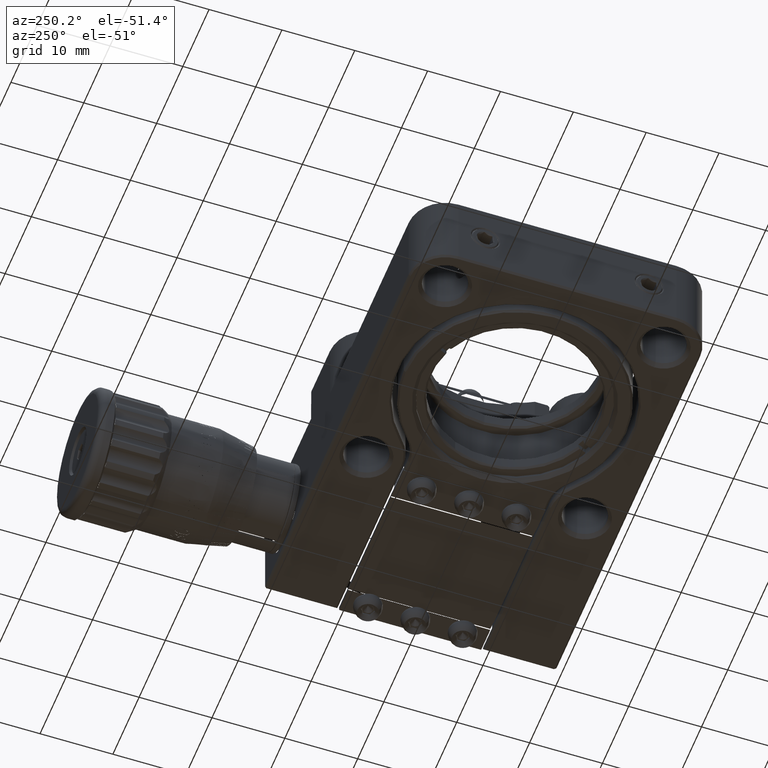
[diagram: clean part render]
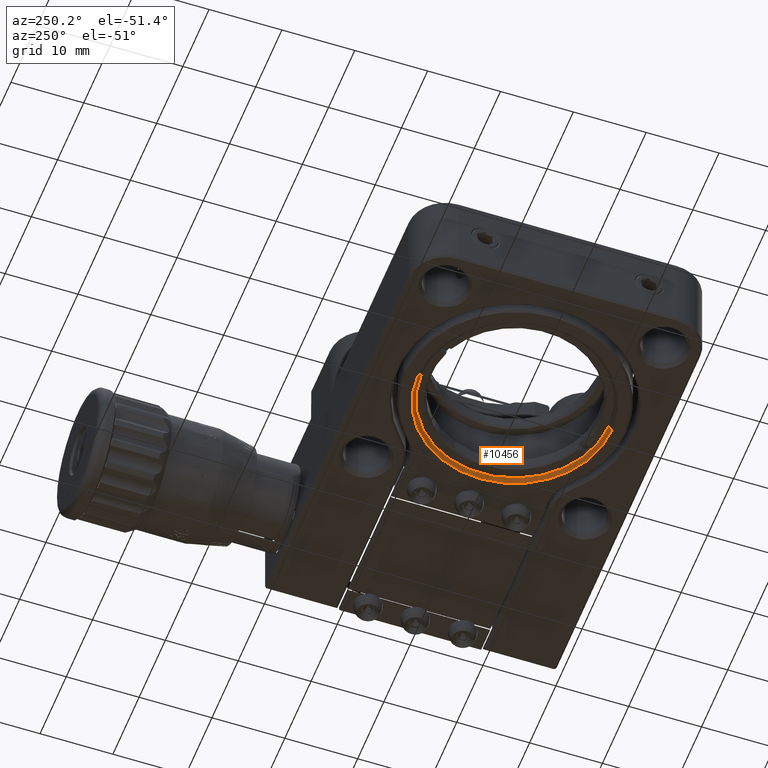
[diagram: same view with one face highlighted and labeled with its STEP entity id]
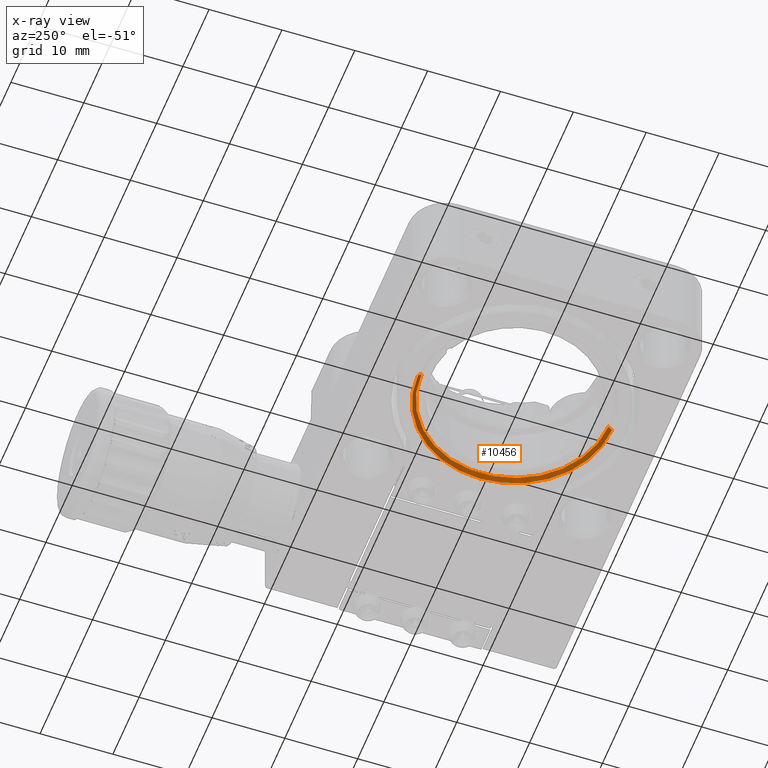
[diagram: x-ray of the same camera — body ghosted, the highlighted face saturated]
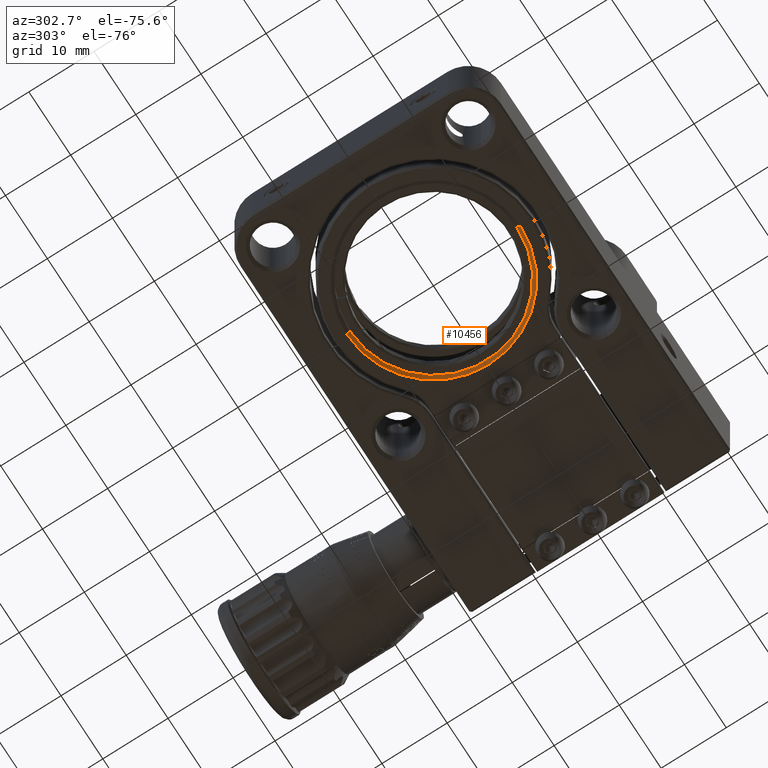
[diagram: same view with one face highlighted and labeled with its STEP entity id]
A machine part, auxiliary view. The second image highlights one B-rep face of the part: STEP entity #10456.
The next image is the same camera in x-ray: the body ghosted, the highlighted face saturated — about 0% of this face is hidden behind the body in this view.
A second angle (auxiliary view) of the same face is appended — the face is thin or edge-on in the first view.
In plain terms, the highlighted conical surface has half-angle 45 deg.
Its self-contained STEP definition (entity closure, byte-faithful):
#583 = DIRECTION ( 'NONE',  ( -1.110223024625156294E-16, -1.000000000000000000, 0.000000000000000000 ) ) ;
#664 = DIRECTION ( 'NONE',  ( 1.110223024625156417E-16, 1.000000000000000000, 0.000000000000000000 ) ) ;
#3903 = EDGE_CURVE ( 'NONE', #22060, #37432, #46453, .T. ) ;
#4125 = AXIS2_PLACEMENT_3D ( 'NONE', #28771, #36958, #583 ) ;
#4570 = DIRECTION ( 'NONE',  ( 1.110223024625156294E-16, 1.000000000000000000, 0.000000000000000000 ) ) ;
#4648 = ORIENTED_EDGE ( 'NONE', *, *, #30741, .F. ) ;
#4872 = DIRECTION ( 'NONE',  ( -7.850462293418833925E-17, -0.7071067811865439090, -0.7071067811865512365 ) ) ;
#5558 = VECTOR ( 'NONE', #4872, 1000.000000000000000 ) ;
#7289 = CARTESIAN_POINT ( 'NONE',  ( 1.311180368549699017E-15, 13.32700000000000529, -5.748279317708217206 ) ) ;
#7662 = CARTESIAN_POINT ( 'NONE',  ( 1.463672932855430986E-15, 5.017193349869462425E-16, -5.248279317708206548 ) ) ;
#8055 = FACE_OUTER_BOUND ( 'NONE', #38486, .T. ) ;
#9631 = VERTEX_POINT ( 'NONE', #43783 ) ;
#10456 = ADVANCED_FACE ( 'NONE', ( #8055 ), #11429, .F. ) ;
#11429 = CONICAL_SURFACE ( 'NONE', #4125, 13.32700000000000529, 0.7853981633974431720 ) ;
#13172 = AXIS2_PLACEMENT_3D ( 'NONE', #26517, #30683, #4570 ) ;
#18416 = CIRCLE ( 'NONE', #13172, 13.32700000000000529 ) ;
#18439 = DIRECTION ( 'NONE',  ( -8.090982689360553298E-18, 0.7071067811865439090, -0.7071067811865512365 ) ) ;
#22060 = VERTEX_POINT ( 'NONE', #30037 ) ;
#22547 = DIRECTION ( 'NONE',  ( -0.000000000000000000, -0.000000000000000000, -1.000000000000000000 ) ) ;
#23149 = CARTESIAN_POINT ( 'NONE',  ( -1.592129206251536189E-17, -13.32700000000000529, -5.748279317708217206 ) ) ;
#26517 = CARTESIAN_POINT ( 'NONE',  ( 1.463672932855430986E-15, 5.017193349869462425E-16, -5.748279317708217206 ) ) ;
#28771 = CARTESIAN_POINT ( 'NONE',  ( 1.463672932855430986E-15, 5.017193349869462425E-16, -5.748279317708217206 ) ) ;
#29325 = VECTOR ( 'NONE', #18439, 1000.000000000000000 ) ;
#30037 = CARTESIAN_POINT ( 'NONE',  ( 1.314040962912754088E-15, 12.82699999999999996, -5.248279317708206548 ) ) ;
#30683 = DIRECTION ( 'NONE',  ( 0.000000000000000000, 0.000000000000000000, 1.000000000000000000 ) ) ;
#30741 = EDGE_CURVE ( 'NONE', #9631, #32512, #18416, .T. ) ;
#32512 = VERTEX_POINT ( 'NONE', #42533 ) ;
#32519 = AXIS2_PLACEMENT_3D ( 'NONE', #7662, #22547, #664 ) ;
#33484 = ORIENTED_EDGE ( 'NONE', *, *, #44887, .F. ) ;
#34428 = EDGE_CURVE ( 'NONE', #22060, #32512, #41333, .T. ) ;
#36958 = DIRECTION ( 'NONE',  ( 0.000000000000000000, 0.000000000000000000, -1.000000000000000000 ) ) ;
#37432 = VERTEX_POINT ( 'NONE', #37883 ) ;
#37790 = ORIENTED_EDGE ( 'NONE', *, *, #34428, .T. ) ;
#37883 = CARTESIAN_POINT ( 'NONE',  ( 1.183428355311396146E-17, -12.82699999999999996, -5.248279317708206548 ) ) ;
#38486 = EDGE_LOOP ( 'NONE', ( #40239, #37790, #4648, #33484 ) ) ;
#40239 = ORIENTED_EDGE ( 'NONE', *, *, #3903, .F. ) ;
#41333 = LINE ( 'NONE', #7289, #29325 ) ;
#42533 = CARTESIAN_POINT ( 'NONE',  ( 1.311180368549699017E-15, 13.32700000000000529, -5.748279317708217206 ) ) ;
#43437 = LINE ( 'NONE', #23149, #5558 ) ;
#43783 = CARTESIAN_POINT ( 'NONE',  ( -1.592129206251536189E-17, -13.32700000000000529, -5.748279317708217206 ) ) ;
#44887 = EDGE_CURVE ( 'NONE', #37432, #9631, #43437, .T. ) ;
#46453 = CIRCLE ( 'NONE', #32519, 12.82699999999999996 ) ;